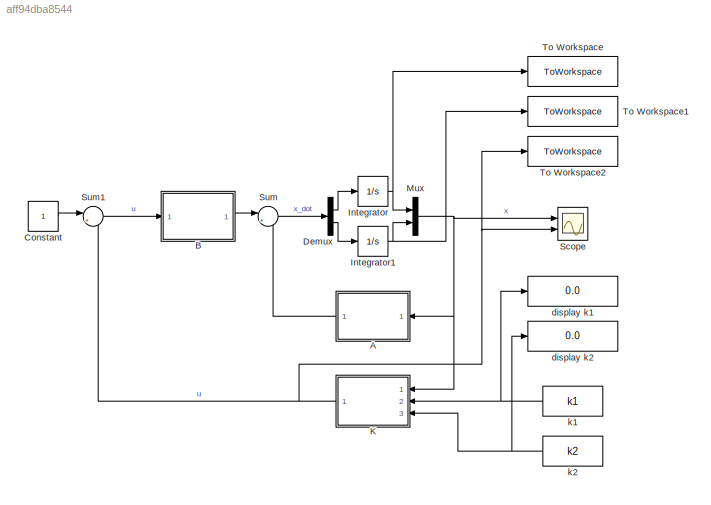
MODEL slx_aff94dba8544
KIND model
CONFIG AbsTol = auto
CONFIG EnableMultiTasking = off
CONFIG FixedStep = auto
CONFIG MaxStep = auto
CONFIG MinStep = auto
CONFIG RelTol = 1e-3
CONFIG SampleTimeConstraint = Unconstrained
CONFIG Solver = VariableStepAuto
CONFIG SolverName = VariableStepAuto
CONFIG StartTime = 0.0
CONFIG StopTime = 10.0
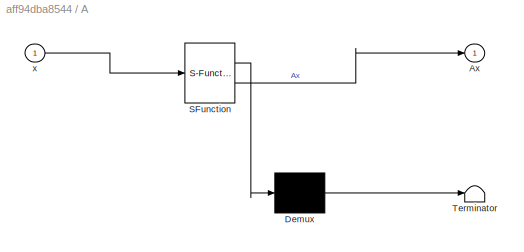
BLOCK [SubSystem] A
  ErrorFcn = Stateflow.Translate.translate
  PermitHierarchicalResolution = ExplicitOnly
  Ports = [1, 1]
  RequestExecContextInheritance = off
  SFBlockType = MATLAB Function
  TreatAsAtomicUnit = on
BLOCK [Demux] A/ Demux 
  Outputs = 1
  Ports = [1, 1]
BLOCK [S-Function] A/ SFunction 
  EnableBusSupport = on
  FunctionName = sf_sfun
  PortCounts = [1 2]
  Ports = [1, 2]
  SFcnIsStateOwnerBlock = off
  SFunctionDeploymentMode = off
  Tag = Stateflow S-Function 1
BLOCK [Terminator] A/ Terminator 
BLOCK [Outport] A/Ax
BLOCK [Inport] A/x
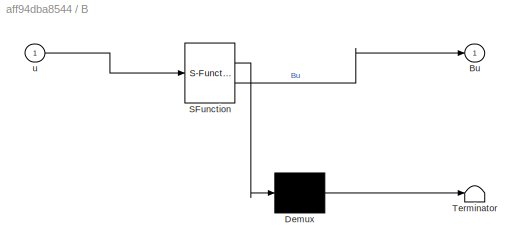
BLOCK [SubSystem] B
  ErrorFcn = Stateflow.Translate.translate
  PermitHierarchicalResolution = ExplicitOnly
  Ports = [1, 1]
  RequestExecContextInheritance = off
  SFBlockType = MATLAB Function
  TreatAsAtomicUnit = on
BLOCK [Demux] B/ Demux 
  Outputs = 1
  Ports = [1, 1]
BLOCK [S-Function] B/ SFunction 
  EnableBusSupport = on
  FunctionName = sf_sfun
  PortCounts = [1 2]
  Ports = [1, 2]
  SFcnIsStateOwnerBlock = off
  SFunctionDeploymentMode = off
  Tag = Stateflow S-Function 2
BLOCK [Terminator] B/ Terminator 
BLOCK [Outport] B/Bu
BLOCK [Inport] B/u
BLOCK [Constant] Constant
BLOCK [Demux] Demux
  Outputs = 2
  Ports = [1, 2]
BLOCK [Integrator] Integrator
  InitialCondition = 1
  Ports = [1, 1]
BLOCK [Integrator] Integrator1
  InitialCondition = -1
  Ports = [1, 1]
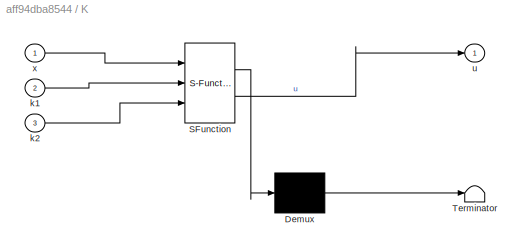
BLOCK [SubSystem] K
  ErrorFcn = Stateflow.Translate.translate
  PermitHierarchicalResolution = ExplicitOnly
  Ports = [3, 1]
  RequestExecContextInheritance = off
  SFBlockType = MATLAB Function
  TreatAsAtomicUnit = on
BLOCK [Demux] K/ Demux 
  Outputs = 1
  Ports = [1, 1]
BLOCK [S-Function] K/ SFunction 
  EnableBusSupport = on
  FunctionName = sf_sfun
  PortCounts = [3 2]
  Ports = [3, 2]
  SFcnIsStateOwnerBlock = off
  SFunctionDeploymentMode = off
  Tag = Stateflow S-Function 3
BLOCK [Terminator] K/ Terminator 
BLOCK [Inport] K/k1
  Port = 2
BLOCK [Inport] K/k2
  Port = 3
BLOCK [Outport] K/u
BLOCK [Inport] K/x
BLOCK [Mux] Mux
  DisplayOption = bar
  Inputs = 2
  Ports = [2, 1]
BLOCK [Scope] Scope
  Floating = off
  NumInputPorts = 2
  Ports = [2]
  ScopeSpecificationString = Simulink.scopes.TimeScopeBlockCfg('CurrentConfiguration', extmgr.ConfigurationSet(extmgr.Configuration('Core','General UI',true),extmgr.Configuration('Core','Source UI',true),extmgr.Configuration('Sources','WiredSimulink',true),extmgr.Configuration('Visuals','Time Domain',true,'SerializedDisplays',{struct('MinYLimReal','-1.25003','MaxYLimReal','1.2503','YLabelReal','','MinYLimMag','0.00000','MaxYL...<+1369ch>
BLOCK [Sum] Sum
  Inputs = |++
  Ports = [2, 1]
BLOCK [Sum] Sum1
  Inputs = |+-
  Ports = [2, 1]
BLOCK [ToWorkspace] To Workspace
  FixptAsFi = on
  MaxDataPoints = inf
  Ports = [1]
  SampleTime = -1
  SaveFormat = Timeseries
  VariableName = x1
BLOCK [ToWorkspace] To Workspace1
  FixptAsFi = on
  MaxDataPoints = inf
  Ports = [1]
  SampleTime = -1
  SaveFormat = Timeseries
  VariableName = x2
BLOCK [ToWorkspace] To Workspace2
  FixptAsFi = on
  MaxDataPoints = inf
  Ports = [1]
  SampleTime = -1
  SaveFormat = Timeseries
  VariableName = u
BLOCK [Display] display k1
  Decimation = 1
  Ports = [1]
BLOCK [Display] display k2
  Decimation = 1
  Ports = [1]
BLOCK [Constant] k1
  Value = k1
BLOCK [Constant] k2
  Value = k2
LINE A:1 -> Sum:2
LINE B:1 -> Sum:1
LINE Constant:1 -> Sum1:1
LINE Demux:1 -> Integrator:1
LINE Demux:2 -> Integrator1:1
NET Integrator1:1 -> Mux:2, To Workspace1:1
NET Integrator:1 -> Mux:1, To Workspace:1
NET K:1 -> Scope:2, Sum1:2, To Workspace2:1
NET Mux:1 -> A:1, K:1, Scope:1
LINE Sum1:1 -> B:1
LINE Sum:1 -> Demux:1
NET k1:1 -> K:2, display k1:1
NET k2:1 -> K:3, display k2:1
note: NET lines group one-source signal fan-out (src -> all destinations, sorted); 1:1 wires keep LINE
CHART B states=1 transitions=1
  STATE_LABEL 'eML_blk_kernel()'
  STATE_LABEL 'SCRIPT:\nfunction Bu = B(u)\n\nBu = [0;u];\n'
CHART K states=1 transitions=1
  STATE_LABEL 'eML_blk_kernel()'
  STATE_LABEL 'SCRIPT:\nfunction u = K(x,k1,k2)\n\nu = k1*x(1) + k2*x(2);\n'
CHART A states=1 transitions=1
  STATE_LABEL 'eML_blk_kernel()'
  STATE_LABEL 'SCRIPT:\nfunction Ax = A(x)\n\nAx = [x(2);-x(1)];\n'
CHART  states=0 transitions=0
CHART  states=0 transitions=0
CHART  states=0 transitions=0
